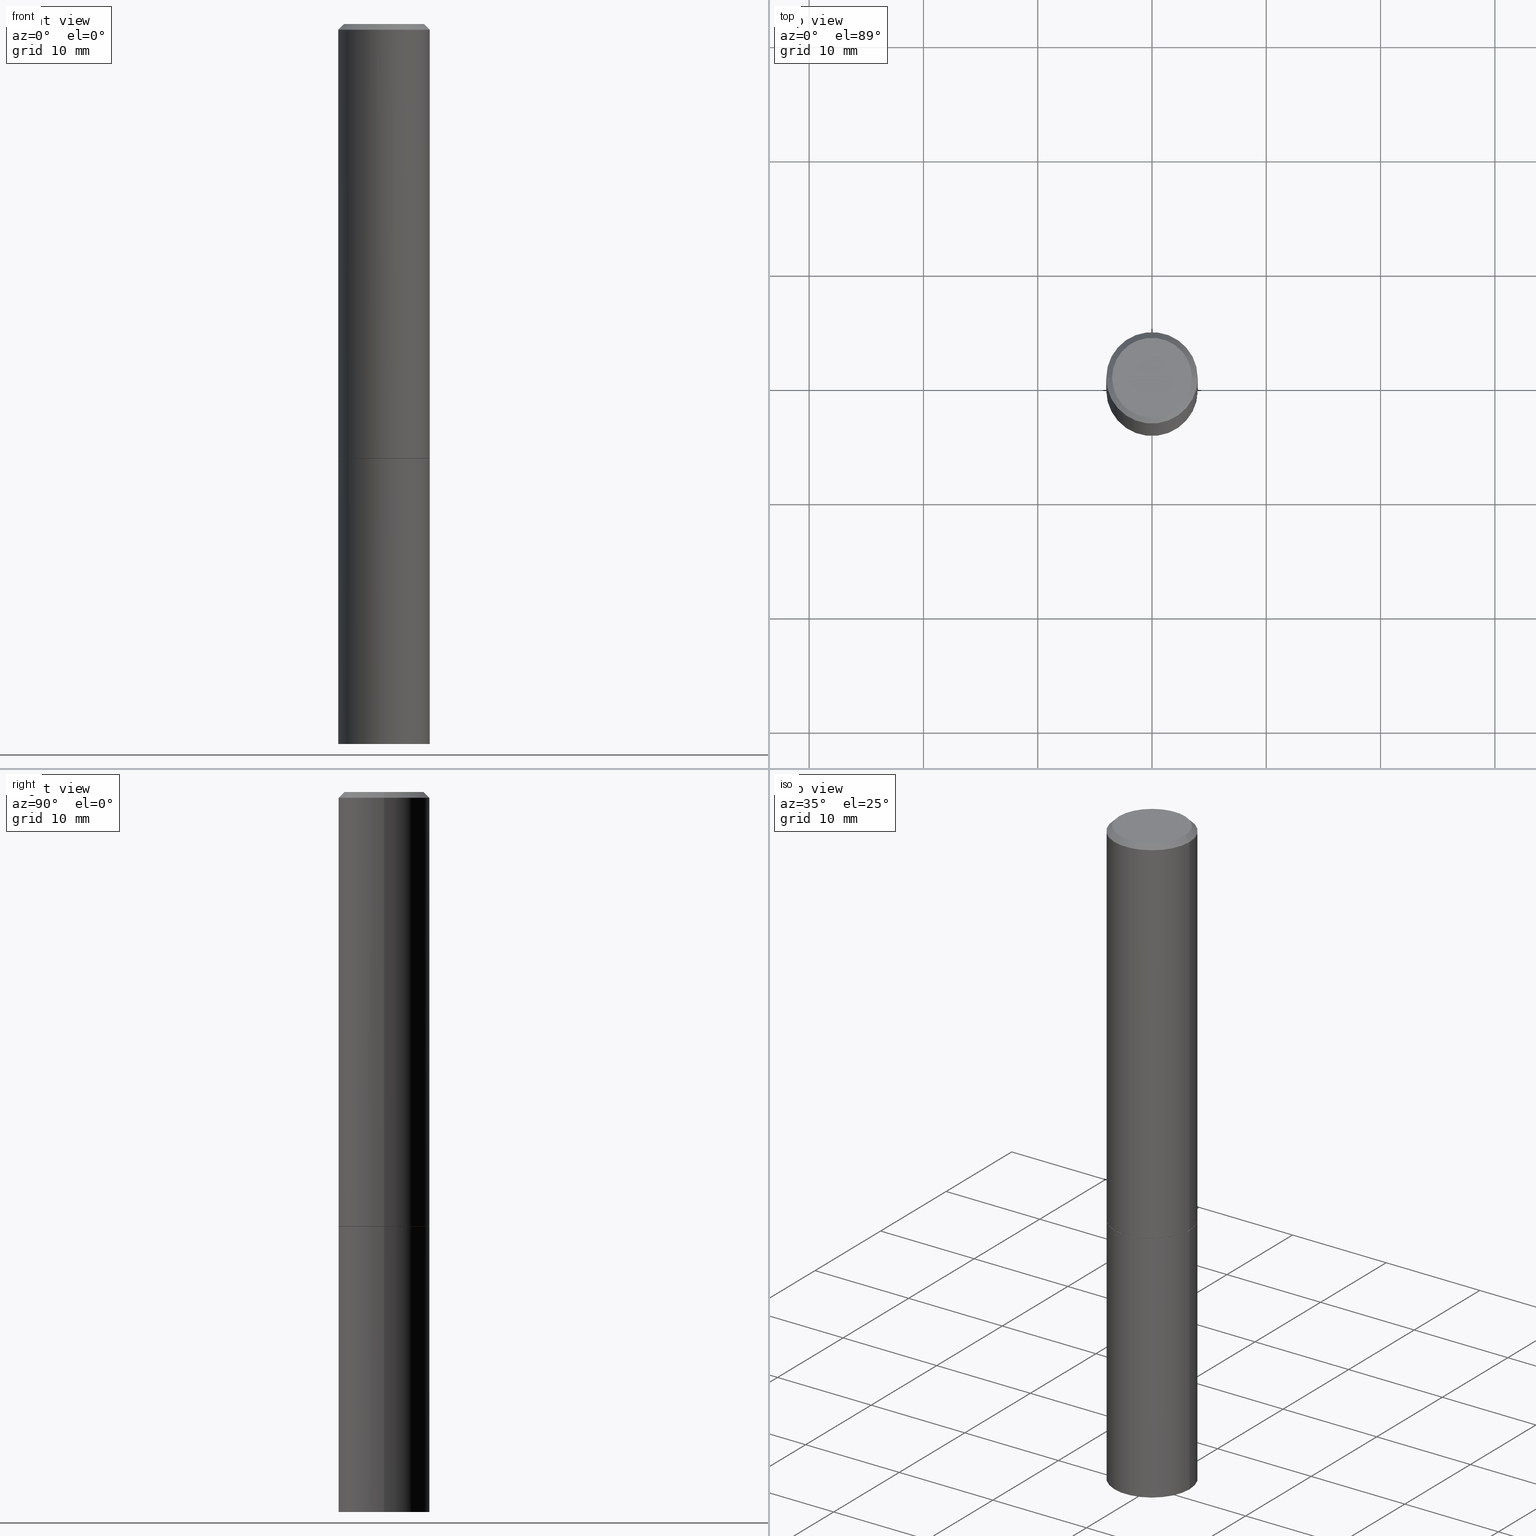
[diagram: canonical four-view strip — front | top / right | iso, engineering-drawing reading convention]
A machine part, canonical four-view strip (front | top / right | iso — engineering-drawing reading convention). The complete STEP part file that produces these views, byte-faithful:
ISO-10303-21;
HEADER;
FILE_DESCRIPTION (( 'STEP AP203' ),
    '1' );
FILE_NAME ('83059.STEP',
    '2024-02-29T22:40:10',
    ( '' ),
    ( '' ),
    'SwSTEP 2.0',
    'SolidWorks 2023',
    '' );
FILE_SCHEMA (( 'CONFIG_CONTROL_DESIGN' ));
ENDSEC;

DATA;
#1 = LOCAL_TIME ( 17, 40, 10.00000000000000000, #98 ) ;
#2 = VERTEX_POINT ( 'NONE', #44 ) ;
#3 = ADVANCED_FACE ( 'NONE', ( #248 ), #118, .F. ) ;
#4 = CARTESIAN_POINT ( 'NONE',  ( -2.087702828670439639E-46, 2.980686340760894400E-32, 8.537024980200822558E-18 ) ) ;
#5 = APPLICATION_CONTEXT ( 'configuration controlled 3d designs of mechanical parts and assemblies' ) ;
#6 = EDGE_LOOP ( 'NONE', ( #272, #156, #28, #188 ) ) ;
#7 = FACE_OUTER_BOUND ( 'NONE', #35, .T. ) ;
#8 = FACE_OUTER_BOUND ( 'NONE', #186, .T. ) ;
#9 = CARTESIAN_POINT ( 'NONE',  ( 3.658421334052965846E-29, -5.223256082909347726E-15, -1.496000000000000663 ) ) ;
#10 = DIRECTION ( 'NONE',  ( -2.445468806185136877E-29, 3.491481338843145188E-15, 1.000000000000000000 ) ) ;
#11 = CARTESIAN_POINT ( 'NONE',  ( 9.601573681818600950E-16, 0.1374999999999997891, -4.758101716008313957E-16 ) ) ;
#12 = CARTESIAN_POINT ( 'NONE',  ( -0.1565000000000000002, -4.111256701444791131E-15, -1.496000000000000663 ) ) ;
#13 = DIRECTION ( 'NONE',  ( 2.445468806185136597E-29, -3.491481338843145583E-15, -1.000000000000000000 ) ) ;
#14 = CALENDAR_DATE ( 2024, 29, 2 ) ;
#15 = CARTESIAN_POINT ( 'NONE',  ( 0.1575000000000000011, -9.759737786468242027E-15, -2.480300000000000171 ) ) ;
#16 = AXIS2_PLACEMENT_3D ( 'NONE', #27, #22, #20 ) ;
#17 = PRODUCT_DEFINITION_FORMATION_WITH_SPECIFIED_SOURCE ( 'ANY', '', #53, .NOT_KNOWN. ) ;
#18 = ADVANCED_FACE ( 'NONE', ( #319 ), #198, .T. ) ;
#19 = APPLICATION_PROTOCOL_DEFINITION ( 'international standard', 'config_control_design', 1994, #5 ) ;
#20 = DIRECTION ( 'NONE',  ( 1.000000000000000000, -6.982962677686261977E-15, 0.000000000000000000 ) ) ;
#21 = COORDINATED_UNIVERSAL_TIME_OFFSET ( 5, 0, .BEHIND. ) ;
#22 = DIRECTION ( 'NONE',  ( -2.445468806185136597E-29, 3.491481338843145583E-15, 1.000000000000000000 ) ) ;
#23 = APPLICATION_PROTOCOL_DEFINITION ( 'international standard', 'config_control_design', 1994, #138 ) ;
#24 = EDGE_LOOP ( 'NONE', ( #244, #180, #136, #220 ) ) ;
#25 = CIRCLE ( 'NONE', #301, 0.1575000000000000011 ) ;
#26 = DATE_AND_TIME ( #268, #229 ) ;
#27 = CARTESIAN_POINT ( 'NONE',  ( 6.065496279980994755E-29, -8.659921164732655335E-15, -2.480300000000000171 ) ) ;
#28 = ORIENTED_EDGE ( 'NONE', *, *, #358, .T. ) ;
#29 = AXIS2_PLACEMENT_3D ( 'NONE', #40, #92, #189 ) ;
#30 = CC_DESIGN_PERSON_AND_ORGANIZATION_ASSIGNMENT ( #208, #124, ( #211 ) ) ;
#31 = CARTESIAN_POINT ( 'NONE',  ( 0.1565000000000000002, -6.316089741967248403E-15, -1.496000000000000663 ) ) ;
#32 = CARTESIAN_POINT ( 'NONE',  ( 0.1575000000000000011, -6.319581223306091410E-15, -1.495000000000000329 ) ) ;
#33 = ADVANCED_FACE ( 'NONE', ( #68 ), #42, .F. ) ;
#34 = CONICAL_SURFACE ( 'NONE', #252, 0.1574999999999997791, 0.7853981633974471688 ) ;
#35 = EDGE_LOOP ( 'NONE', ( #247, #280, #101, #234 ) ) ;
#36 = CYLINDRICAL_SURFACE ( 'NONE', #261, 0.1575000000000000011 ) ;
#37 = LINE ( 'NONE', #285, #161 ) ;
#38 = DIRECTION ( 'NONE',  ( -2.445468806185136877E-29, 3.491481338843145188E-15, 1.000000000000000000 ) ) ;
#39 = EDGE_CURVE ( 'NONE', #2, #314, #37, .T. ) ;
#40 = CARTESIAN_POINT ( 'NONE',  ( 3.658421334052965846E-29, -5.223256082909347726E-15, -1.496000000000000663 ) ) ;
#41 = VECTOR ( 'NONE', #117, 39.37007874015748143 ) ;
#42 = PLANE ( 'NONE',  #329 ) ;
#43 = CARTESIAN_POINT ( 'NONE',  ( 0.000000000000000000, 0.000000000000000000, 0.000000000000000000 ) ) ;
#44 = CARTESIAN_POINT ( 'NONE',  ( -0.1575000000000000011, -1.525692305351524236E-15, -1.495000000000000329 ) ) ;
#45 = DESIGN_CONTEXT ( 'detailed design', #138, 'design' ) ;
#46 = CARTESIAN_POINT ( 'NONE',  ( 4.890937612370281041E-31, -6.982962677686302702E-17, -0.02000000000000003511 ) ) ;
#47 = AXIS2_PLACEMENT_3D ( 'NONE', #145, #311, #119 ) ;
#48 = DATE_AND_TIME ( #179, #302 ) ;
#49 = AXIS2_PLACEMENT_3D ( 'NONE', #4, #271, #80 ) ;
#50 = AXIS2_PLACEMENT_3D ( 'NONE', #240, #365, #108 ) ;
#51 = APPROVAL_DATE_TIME ( #293, #150 ) ;
#52 = DIRECTION ( 'NONE',  ( 1.000000000000000000, -6.982962677686261977E-15, 0.000000000000000000 ) ) ;
#53 = PRODUCT ( '83059', '83059', '', ( #174 ) ) ;
#54 = VERTEX_POINT ( 'NONE', #165 ) ;
#55 = EDGE_LOOP ( 'NONE', ( #306, #86, #238, #276 ) ) ;
#56 = CLOSED_SHELL ( 'NONE', ( #72, #245, #81, #18, #230, #122, #202, #3 ) ) ;
#57 = ORGANIZATION ( 'UNSPECIFIED', 'UNSPECIFIED', '' ) ;
#58 = PLANE ( 'NONE',  #50 ) ;
#59 = ORIENTED_EDGE ( 'NONE', *, *, #134, .F. ) ;
#60 = CARTESIAN_POINT ( 'NONE',  ( 0.000000000000000000, 0.000000000000000000, 0.000000000000000000 ) ) ;
#61 = EDGE_LOOP ( 'NONE', ( #59, #317 ) ) ;
#62 = CONICAL_SURFACE ( 'NONE', #137, 0.1565000000000000002, 0.7853981633972775267 ) ;
#63 = LINE ( 'NONE', #12, #199 ) ;
#64 = CARTESIAN_POINT ( 'NONE',  ( -0.1374999999999997891, 9.950721815702913496E-16, 8.537024980193986277E-18 ) ) ;
#65 = DIRECTION ( 'NONE',  ( 2.445468806185136597E-29, -3.491481338843145583E-15, -1.000000000000000000 ) ) ;
#66 = CC_DESIGN_DATE_AND_TIME_ASSIGNMENT ( #26, #100, ( #210 ) ) ;
#67 = CARTESIAN_POINT ( 'NONE',  ( 0.1574999999999998901, -1.099816621735586297E-15, 7.679978421878593829E-30 ) ) ;
#68 = FACE_OUTER_BOUND ( 'NONE', #190, .T. ) ;
#69 = CYLINDRICAL_SURFACE ( 'NONE', #312, 0.1575000000000000011 ) ;
#70 = FACE_OUTER_BOUND ( 'NONE', #55, .T. ) ;
#71 = CARTESIAN_POINT ( 'NONE',  ( 0.1574999999999997791, -1.150358061425877894E-15, -0.02000000000000003511 ) ) ;
#72 = ADVANCED_FACE ( 'NONE', ( #8 ), #62, .T. ) ;
#73 = CARTESIAN_POINT ( 'NONE',  ( 4.890937612370281041E-31, -6.982962677686302702E-17, -0.02000000000000003511 ) ) ;
#74 = DATE_TIME_ROLE ( 'creation_date' ) ;
#75 = VECTOR ( 'NONE', #10, 39.37007874015748143 ) ;
#76 = EDGE_CURVE ( 'NONE', #197, #364, #233, .T. ) ;
#77 = PERSON_AND_ORGANIZATION_ROLE ( 'design_owner' ) ;
#78 = SECURITY_CLASSIFICATION_LEVEL ( 'unclassified' ) ;
#79 = VECTOR ( 'NONE', #140, 39.37007874015748143 ) ;
#80 = DIRECTION ( 'NONE',  ( 1.000000000000000000, -6.982962677686267499E-15, 4.876173381029107889E-29 ) ) ;
#81 = ADVANCED_FACE ( 'NONE', ( #70 ), #34, .T. ) ;
#82 = EDGE_LOOP ( 'NONE', ( #195, #310, #135, #141 ) ) ;
#83 = CLOSED_SHELL ( 'NONE', ( #249, #90, #33, #354 ) ) ;
#84 = ORIENTED_EDGE ( 'NONE', *, *, #315, .T. ) ;
#85 =( LENGTH_UNIT ( ) NAMED_UNIT ( * ) SI_UNIT ( $, .METRE. ) );
#86 = ORIENTED_EDGE ( 'NONE', *, *, #281, .T. ) ;
#87 = CIRCLE ( 'NONE', #228, 0.1575000000000000011 ) ;
#88 = CARTESIAN_POINT ( 'NONE',  ( -0.1574999999999997791, 1.029986994958722407E-15, -0.02000000000000003511 ) ) ;
#89 = PLANE ( 'NONE',  #260 ) ;
#90 = ADVANCED_FACE ( 'NONE', ( #321 ), #89, .T. ) ;
#91 = ORIENTED_EDGE ( 'NONE', *, *, #169, .T. ) ;
#92 = DIRECTION ( 'NONE',  ( -2.445468806185136597E-29, 3.491481338843145583E-15, 1.000000000000000000 ) ) ;
#93 = DIRECTION ( 'NONE',  ( 1.000000000000000000, -6.982962677686267499E-15, 0.000000000000000000 ) ) ;
#94 = CC_DESIGN_PERSON_AND_ORGANIZATION_ASSIGNMENT ( #297, #263, ( #210 ) ) ;
#95 = DIRECTION ( 'NONE',  ( -2.445468806185136597E-29, 3.491481338843145583E-15, 1.000000000000000000 ) ) ;
#96 =( NAMED_UNIT ( * ) SI_UNIT ( $, .STERADIAN. ) SOLID_ANGLE_UNIT ( ) );
#97 = CIRCLE ( 'NONE', #115, 0.1565000000000000002 ) ;
#98 = COORDINATED_UNIVERSAL_TIME_OFFSET ( 5, 0, .BEHIND. ) ;
#99 = DIRECTION ( 'NONE',  ( -2.445468806185136597E-29, 3.491481338843145583E-15, 1.000000000000000000 ) ) ;
#100 = DATE_TIME_ROLE ( 'classification_date' ) ;
#101 = ORIENTED_EDGE ( 'NONE', *, *, #187, .F. ) ;
#102 = CIRCLE ( 'NONE', #49, 0.1374999999999997891 ) ;
#103 = CC_DESIGN_APPROVAL ( #328, ( #17 ) ) ;
#104 = CARTESIAN_POINT ( 'NONE',  ( -0.1575000000000000011, -5.822483814998842744E-15, -1.496000000000000441 ) ) ;
#105 = EDGE_LOOP ( 'NONE', ( #292, #257 ) ) ;
#106 = DIRECTION ( 'NONE',  ( -2.445468806185136597E-29, 3.491481338843145583E-15, 1.000000000000000000 ) ) ;
#107 = VERTEX_POINT ( 'NONE', #15 ) ;
#108 = DIRECTION ( 'NONE',  ( 1.000000000000000000, -6.982962677686265922E-15, 4.876176775795935793E-29 ) ) ;
#109 = EDGE_CURVE ( 'NONE', #111, #314, #243, .T. ) ;
#110 = CIRCLE ( 'NONE', #215, 0.1575000000000000011 ) ;
#111 = VERTEX_POINT ( 'NONE', #353 ) ;
#112 = EDGE_CURVE ( 'NONE', #153, #2, #307, .T. ) ;
#113 = CARTESIAN_POINT ( 'NONE',  ( 0.000000000000000000, 0.000000000000000000, 0.000000000000000000 ) ) ;
#114 = CARTESIAN_POINT ( 'NONE',  ( 3.658421334052965286E-29, -5.223256082909346937E-15, -1.496000000000000441 ) ) ;
#115 = AXIS2_PLACEMENT_3D ( 'NONE', #9, #320, #347 ) ;
#116 = CC_DESIGN_APPROVAL ( #150, ( #211 ) ) ;
#117 = DIRECTION ( 'NONE',  ( -0.7071067811865466846, 2.468850131082247989E-15, -0.7071067811865483499 ) ) ;
#118 = PLANE ( 'NONE',  #204 ) ;
#119 = DIRECTION ( 'NONE',  ( 1.000000000000000000, -6.982962677686267499E-15, 4.876173381029107889E-29 ) ) ;
#120 = DIRECTION ( 'NONE',  ( -1.000000000000000000, 6.982962677686265922E-15, -4.876176775795935793E-29 ) ) ;
#121 = DIRECTION ( 'NONE',  ( -1.000000000000000000, 6.982962677686265922E-15, -4.876176775795935793E-29 ) ) ;
#122 = ADVANCED_FACE ( 'NONE', ( #326 ), #177, .T. ) ;
#123 = DIRECTION ( 'NONE',  ( 1.000000000000000000, -6.982962677686266711E-15, 0.000000000000000000 ) ) ;
#124 = PERSON_AND_ORGANIZATION_ROLE ( 'creator' ) ;
#125 = EDGE_CURVE ( 'NONE', #132, #107, #110, .T. ) ;
#126 = DIRECTION ( 'NONE',  ( -2.445468806185136597E-29, 3.491481338843145583E-15, 1.000000000000000000 ) ) ;
#127 = DATE_AND_TIME ( #14, #269 ) ;
#128 = PERSON ( 'UNSPECIFIED', 'UNSPECIFIED', 'UNSPECIFIED', ('UNSPECIFIED'), ('UNSPECIFIED'), ('UNSPECIFIED') ) ;
#129 = DIRECTION ( 'NONE',  ( 0.000000000000000000, 0.000000000000000000, 1.000000000000000000 ) ) ;
#130 = MANIFOLD_SOLID_BREP ( 'Body-Move/Copy2[2]', #56 ) ;
#131 = VECTOR ( 'NONE', #193, 39.37007874015748143 ) ;
#132 = VERTEX_POINT ( 'NONE', #149 ) ;
#133 = MANIFOLD_SOLID_BREP ( 'Body-Move/Copy2[1]', #83 ) ;
#134 = EDGE_CURVE ( 'NONE', #107, #132, #359, .T. ) ;
#135 = ORIENTED_EDGE ( 'NONE', *, *, #109, .F. ) ;
#136 = ORIENTED_EDGE ( 'NONE', *, *, #303, .T. ) ;
#137 = AXIS2_PLACEMENT_3D ( 'NONE', #227, #171, #93 ) ;
#138 = APPLICATION_CONTEXT ( 'configuration controlled 3d designs of mechanical parts and assemblies' ) ;
#139 = EDGE_CURVE ( 'NONE', #185, #153, #355, .T. ) ;
#140 = DIRECTION ( 'NONE',  ( 0.7071067811865466846, -7.319954787623252890E-15, -0.7071067811865483499 ) ) ;
#141 = ORIENTED_EDGE ( 'NONE', *, *, #333, .F. ) ;
#142 = DIRECTION ( 'NONE',  ( -2.445468806185136597E-29, 3.491481338843145583E-15, 1.000000000000000000 ) ) ;
#143 = AXIS2_PLACEMENT_3D ( 'NONE', #323, #162, #318 ) ;
#144 =( GEOMETRIC_REPRESENTATION_CONTEXT ( 3 ) GLOBAL_UNCERTAINTY_ASSIGNED_CONTEXT ( ( #191 ) ) GLOBAL_UNIT_ASSIGNED_CONTEXT ( ( #284, #258, #96 ) ) REPRESENTATION_CONTEXT ( 'NONE', 'WORKASPACE' ) );
#145 = CARTESIAN_POINT ( 'NONE',  ( -2.087702828670439639E-46, 2.980686340760894400E-32, 8.537024980200822558E-18 ) ) ;
#146 = DIRECTION ( 'NONE',  ( 1.000000000000000000, -6.982962677686266711E-15, 4.876176775795935793E-29 ) ) ;
#147 = DIRECTION ( 'NONE',  ( -2.445468806185136597E-29, 3.491481338843145583E-15, 1.000000000000000000 ) ) ;
#148 = COORDINATED_UNIVERSAL_TIME_OFFSET ( 5, 0, .BEHIND. ) ;
#149 = CARTESIAN_POINT ( 'NONE',  ( -0.1575000000000000011, -5.822483814998842744E-15, -2.480300000000000171 ) ) ;
#150 = APPROVAL ( #327, 'UNSPECIFIED' ) ;
#151 = CARTESIAN_POINT ( 'NONE',  ( 6.065496279980994755E-29, -8.659921164732655335E-15, -2.480300000000000171 ) ) ;
#152 = CARTESIAN_POINT ( 'NONE',  ( 0.000000000000000000, 0.000000000000000000, 0.000000000000000000 ) ) ;
#153 = VERTEX_POINT ( 'NONE', #32 ) ;
#154 = PERSON_AND_ORGANIZATION ( #128, #57 ) ;
#155 = CARTESIAN_POINT ( 'NONE',  ( 3.658421334052965846E-29, -5.223256082909347726E-15, -1.496000000000000663 ) ) ;
#156 = ORIENTED_EDGE ( 'NONE', *, *, #315, .F. ) ;
#157 = ORIENTED_EDGE ( 'NONE', *, *, #139, .F. ) ;
#158 = EDGE_LOOP ( 'NONE', ( #84, #91 ) ) ;
#159 = ORIENTED_EDGE ( 'NONE', *, *, #76, .T. ) ;
#160 = EDGE_CURVE ( 'NONE', #2, #153, #25, .T. ) ;
#161 = VECTOR ( 'NONE', #255, 39.37007874015748143 ) ;
#162 = DIRECTION ( 'NONE',  ( -2.445468806185136597E-29, 3.491481338843145583E-15, 1.000000000000000000 ) ) ;
#163 = CARTESIAN_POINT ( 'NONE',  ( 4.890937612370281041E-31, -6.982962677686302702E-17, -0.02000000000000003511 ) ) ;
#164 = CARTESIAN_POINT ( 'NONE',  ( -0.1575000000000000011, 1.119104808822157801E-15, -7.747322767151475583E-30 ) ) ;
#165 = CARTESIAN_POINT ( 'NONE',  ( 0.1374999999999997891, -1.046838268059730914E-15, 8.537024980207840646E-18 ) ) ;
#166 = LENGTH_MEASURE_WITH_UNIT ( LENGTH_MEASURE( 0.02539999999999999897 ), #85 );
#167 = DIRECTION ( 'NONE',  ( 2.438088387897960049E-29, -3.491481338843145188E-15, -1.000000000000000000 ) ) ;
#168 = VECTOR ( 'NONE', #182, 39.37007874015748143 ) ;
#169 = EDGE_CURVE ( 'NONE', #54, #324, #102, .T. ) ;
#170 = LINE ( 'NONE', #164, #356 ) ;
#171 = DIRECTION ( 'NONE',  ( -2.445468806185136597E-29, 3.491481338843145583E-15, 1.000000000000000000 ) ) ;
#172 = LINE ( 'NONE', #71, #79 ) ;
#173 = DIRECTION ( 'NONE',  ( -1.000000000000000000, 6.982962677686265922E-15, -4.876176775795935793E-29 ) ) ;
#174 = MECHANICAL_CONTEXT ( 'NONE', #5, 'mechanical' ) ;
#175 = PRODUCT_DEFINITION_SHAPE ( 'NONE', 'NONE',  #211 ) ;
#176 = CC_DESIGN_PERSON_AND_ORGANIZATION_ASSIGNMENT ( #201, #77, ( #53 ) ) ;
#177 = CONICAL_SURFACE ( 'NONE', #221, 0.1565000000000000002, 0.7853981633972775267 ) ;
#178 = PERSON_AND_ORGANIZATION ( #128, #57 ) ;
#179 = CALENDAR_DATE ( 2024, 29, 2 ) ;
#180 = ORIENTED_EDGE ( 'NONE', *, *, #125, .T. ) ;
#181 = PERSON_AND_ORGANIZATION ( #128, #57 ) ;
#182 = DIRECTION ( 'NONE',  ( 0.7071067811864267805, -2.468850131080992517E-15, 0.7071067811866682540 ) ) ;
#183 = CC_DESIGN_PERSON_AND_ORGANIZATION_ASSIGNMENT ( #332, #352, ( #17 ) ) ;
#184 = AXIS2_PLACEMENT_3D ( 'NONE', #163, #65, #225 ) ;
#185 = VERTEX_POINT ( 'NONE', #31 ) ;
#186 = EDGE_LOOP ( 'NONE', ( #351, #251, #241, #157 ) ) ;
#187 = EDGE_CURVE ( 'NONE', #364, #197, #87, .T. ) ;
#188 = ORIENTED_EDGE ( 'NONE', *, *, #270, .T. ) ;
#189 = DIRECTION ( 'NONE',  ( 1.000000000000000000, -6.982962677686267499E-15, 0.000000000000000000 ) ) ;
#190 = EDGE_LOOP ( 'NONE', ( #213, #159 ) ) ;
#191 = UNCERTAINTY_MEASURE_WITH_UNIT (LENGTH_MEASURE( 1.000000000000000082E-05 ), #284, 'distance_accuracy_value', 'NONE');
#192 = CIRCLE ( 'NONE', #47, 0.1374999999999997891 ) ;
#193 = DIRECTION ( 'NONE',  ( -2.445468806185136877E-29, 3.491481338843145188E-15, 1.000000000000000000 ) ) ;
#194 = ORIENTED_EDGE ( 'NONE', *, *, #160, .F. ) ;
#195 = ORIENTED_EDGE ( 'NONE', *, *, #112, .T. ) ;
#196 = FACE_OUTER_BOUND ( 'NONE', #82, .T. ) ;
#197 = VERTEX_POINT ( 'NONE', #104 ) ;
#198 = CONICAL_SURFACE ( 'NONE', #184, 0.1574999999999997791, 0.7853981633974471688 ) ;
#199 = VECTOR ( 'NONE', #350, 39.37007874015748143 ) ;
#200 = ADVANCED_BREP_SHAPE_REPRESENTATION ( '83059', ( #133, #130, #296 ), #144 ) ;
#201 = PERSON_AND_ORGANIZATION ( #128, #57 ) ;
#202 = ADVANCED_FACE ( 'NONE', ( #336 ), #58, .F. ) ;
#203 = DIRECTION ( 'NONE',  ( 2.438088387897960049E-29, -3.491481338843145188E-15, -1.000000000000000000 ) ) ;
#204 = AXIS2_PLACEMENT_3D ( 'NONE', #11, #203, #120 ) ;
#205 = CALENDAR_DATE ( 2024, 29, 2 ) ;
#206 = APPROVAL_STATUS ( 'not_yet_approved' ) ;
#207 = CARTESIAN_POINT ( 'NONE',  ( 3.655975865246779683E-29, -5.219764601570503930E-15, -1.495000000000000329 ) ) ;
#208 = PERSON_AND_ORGANIZATION ( #128, #57 ) ;
#209 = DIRECTION ( 'NONE',  ( -2.445468806185136597E-29, 3.491481338843145583E-15, 1.000000000000000000 ) ) ;
#210 = SECURITY_CLASSIFICATION ( '', '', #78 ) ;
#211 = PRODUCT_DEFINITION ( 'UNKNOWN', '', #17, #45 ) ;
#212 = DIRECTION ( 'NONE',  ( 1.000000000000000000, -6.982962677686268288E-15, 0.000000000000000000 ) ) ;
#213 = ORIENTED_EDGE ( 'NONE', *, *, #187, .T. ) ;
#214 = FACE_OUTER_BOUND ( 'NONE', #239, .T. ) ;
#215 = AXIS2_PLACEMENT_3D ( 'NONE', #151, #126, #52 ) ;
#216 = APPROVAL_PERSON_ORGANIZATION ( #181, #265, #290 ) ;
#217 = CALENDAR_DATE ( 2024, 29, 2 ) ;
#218 = LINE ( 'NONE', #67, #75 ) ;
#219 = LINE ( 'NONE', #224, #131 ) ;
#220 = ORIENTED_EDGE ( 'NONE', *, *, #76, .F. ) ;
#221 = AXIS2_PLACEMENT_3D ( 'NONE', #155, #209, #294 ) ;
#222 = CARTESIAN_POINT ( 'NONE',  ( -0.1565000000000000002, -4.105958247096567940E-15, -1.496000000000000663 ) ) ;
#223 = PRODUCT_RELATED_PRODUCT_CATEGORY ( 'detail', '', ( #53 ) ) ;
#224 = CARTESIAN_POINT ( 'NONE',  ( 0.1575000000000000011, -1.099816621735586889E-15, 7.679978421878598033E-30 ) ) ;
#225 = DIRECTION ( 'NONE',  ( -1.000000000000000000, 6.982962677686266711E-15, 0.000000000000000000 ) ) ;
#226 = DIRECTION ( 'NONE',  ( 1.000000000000000000, -6.982962677686266711E-15, 4.876176775795935793E-29 ) ) ;
#227 = CARTESIAN_POINT ( 'NONE',  ( 3.658421334052965846E-29, -5.223256082909347726E-15, -1.496000000000000663 ) ) ;
#228 = AXIS2_PLACEMENT_3D ( 'NONE', #362, #106, #212 ) ;
#229 = LOCAL_TIME ( 17, 40, 10.00000000000000000, #21 ) ;
#230 = ADVANCED_FACE ( 'NONE', ( #214 ), #308, .T. ) ;
#231 = DIRECTION ( 'NONE',  ( -1.000000000000000000, 6.982962677686266711E-15, 0.000000000000000000 ) ) ;
#232 = COORDINATED_UNIVERSAL_TIME_OFFSET ( 5, 0, .BEHIND. ) ;
#233 = CIRCLE ( 'NONE', #273, 0.1575000000000000011 ) ;
#234 = ORIENTED_EDGE ( 'NONE', *, *, #303, .F. ) ;
#235 = APPROVAL_ROLE ( '' ) ;
#236 = CIRCLE ( 'NONE', #29, 0.1565000000000000002 ) ;
#237 = CC_DESIGN_APPROVAL ( #265, ( #210 ) ) ;
#238 = ORIENTED_EDGE ( 'NONE', *, *, #109, .T. ) ;
#239 = EDGE_LOOP ( 'NONE', ( #266, #300, #309, #339 ) ) ;
#240 = CARTESIAN_POINT ( 'NONE',  ( 3.658421334052965846E-29, -5.223256082909347726E-15, -1.496000000000000663 ) ) ;
#241 = ORIENTED_EDGE ( 'NONE', *, *, #112, .F. ) ;
#242 = CIRCLE ( 'NONE', #143, 0.1574999999999997791 ) ;
#243 = CIRCLE ( 'NONE', #286, 0.1574999999999997791 ) ;
#244 = ORIENTED_EDGE ( 'NONE', *, *, #341, .F. ) ;
#245 = ADVANCED_FACE ( 'NONE', ( #196 ), #346, .T. ) ;
#246 = DATE_AND_TIME ( #217, #277 ) ;
#247 = ORIENTED_EDGE ( 'NONE', *, *, #134, .T. ) ;
#248 = FACE_OUTER_BOUND ( 'NONE', #158, .T. ) ;
#249 = ADVANCED_FACE ( 'NONE', ( #7 ), #69, .T. ) ;
#250 = LINE ( 'NONE', #256, #41 ) ;
#251 = ORIENTED_EDGE ( 'NONE', *, *, #363, .T. ) ;
#252 = AXIS2_PLACEMENT_3D ( 'NONE', #73, #13, #231 ) ;
#253 = APPROVAL_DATE_TIME ( #246, #265 ) ;
#254 = DIRECTION ( 'NONE',  ( 1.000000000000000000, -6.982962677686265922E-15, 4.876176775795935232E-29 ) ) ;
#255 = DIRECTION ( 'NONE',  ( -2.445468806185136877E-29, 3.491481338843145188E-15, 1.000000000000000000 ) ) ;
#256 = CARTESIAN_POINT ( 'NONE',  ( -0.1574999999999997791, 1.029986994958722407E-15, -0.02000000000000003511 ) ) ;
#257 = ORIENTED_EDGE ( 'NONE', *, *, #322, .F. ) ;
#258 =( NAMED_UNIT ( * ) PLANE_ANGLE_UNIT ( ) SI_UNIT ( $, .RADIAN. ) );
#259 = CARTESIAN_POINT ( 'NONE',  ( 1.099816621735647434E-15, 0.1574999999999913136, -2.480300000000001059 ) ) ;
#260 = AXIS2_PLACEMENT_3D ( 'NONE', #259, #289, #173 ) ;
#261 = AXIS2_PLACEMENT_3D ( 'NONE', #43, #142, #342 ) ;
#262 = APPROVAL_DATE_TIME ( #48, #328 ) ;
#263 = PERSON_AND_ORGANIZATION_ROLE ( 'classification_officer' ) ;
#264 = PERSON_AND_ORGANIZATION ( #128, #57 ) ;
#265 = APPROVAL ( #278, 'UNSPECIFIED' ) ;
#266 = ORIENTED_EDGE ( 'NONE', *, *, #39, .F. ) ;
#267 = AXIS2_PLACEMENT_3D ( 'NONE', #60, #279, #226 ) ;
#268 = CALENDAR_DATE ( 2024, 29, 2 ) ;
#269 = LOCAL_TIME ( 17, 40, 10.00000000000000000, #148 ) ;
#270 = EDGE_CURVE ( 'NONE', #314, #111, #242, .T. ) ;
#271 = DIRECTION ( 'NONE',  ( -2.445468806185136597E-29, 3.491481338843145583E-15, 1.000000000000000000 ) ) ;
#272 = ORIENTED_EDGE ( 'NONE', *, *, #281, .F. ) ;
#273 = AXIS2_PLACEMENT_3D ( 'NONE', #114, #95, #283 ) ;
#274 = DIRECTION ( 'NONE',  ( 1.000000000000000000, -6.982962677686268288E-15, 0.000000000000000000 ) ) ;
#275 = ORIENTED_EDGE ( 'NONE', *, *, #322, .T. ) ;
#276 = ORIENTED_EDGE ( 'NONE', *, *, #358, .F. ) ;
#277 = LOCAL_TIME ( 17, 40, 10.00000000000000000, #304 ) ;
#278 = APPROVAL_STATUS ( 'not_yet_approved' ) ;
#279 = DIRECTION ( 'NONE',  ( -2.445468806185136597E-29, 3.491481338843145583E-15, 1.000000000000000000 ) ) ;
#280 = ORIENTED_EDGE ( 'NONE', *, *, #341, .T. ) ;
#281 = EDGE_CURVE ( 'NONE', #54, #111, #172, .T. ) ;
#282 = DIRECTION ( 'NONE',  ( -2.445468806185136597E-29, 3.491481338843145583E-15, 1.000000000000000000 ) ) ;
#283 = DIRECTION ( 'NONE',  ( 1.000000000000000000, -6.982962677686268288E-15, 0.000000000000000000 ) ) ;
#284 =( CONVERSION_BASED_UNIT ( 'INCH', #166 ) LENGTH_UNIT ( ) NAMED_UNIT ( #334 ) );
#285 = CARTESIAN_POINT ( 'NONE',  ( -0.1574999999999998901, 1.119104808822157012E-15, -7.747322767151471379E-30 ) ) ;
#286 = AXIS2_PLACEMENT_3D ( 'NONE', #46, #147, #123 ) ;
#287 = APPROVAL_PERSON_ORGANIZATION ( #264, #150, #235 ) ;
#288 = FACE_OUTER_BOUND ( 'NONE', #24, .T. ) ;
#289 = DIRECTION ( 'NONE',  ( 2.438088387897960049E-29, -3.491481338843145188E-15, -1.000000000000000000 ) ) ;
#290 = APPROVAL_ROLE ( '' ) ;
#291 = CARTESIAN_POINT ( 'NONE',  ( 0.1575000000000000011, -6.323072704644934417E-15, -1.496000000000000441 ) ) ;
#292 = ORIENTED_EDGE ( 'NONE', *, *, #337, .F. ) ;
#293 = DATE_AND_TIME ( #205, #1 ) ;
#294 = DIRECTION ( 'NONE',  ( 1.000000000000000000, -6.982962677686267499E-15, 0.000000000000000000 ) ) ;
#295 = AXIS2_PLACEMENT_3D ( 'NONE', #113, #282, #146 ) ;
#296 = AXIS2_PLACEMENT_3D ( 'NONE', #152, #129, #325 ) ;
#297 = PERSON_AND_ORGANIZATION ( #128, #57 ) ;
#298 = CC_DESIGN_DATE_AND_TIME_ASSIGNMENT ( #127, #74, ( #211 ) ) ;
#299 = DIRECTION ( 'NONE',  ( 1.000000000000000000, -6.982962677686268288E-15, 0.000000000000000000 ) ) ;
#300 = ORIENTED_EDGE ( 'NONE', *, *, #160, .T. ) ;
#301 = AXIS2_PLACEMENT_3D ( 'NONE', #360, #338, #274 ) ;
#302 = LOCAL_TIME ( 17, 40, 10.00000000000000000, #232 ) ;
#303 = EDGE_CURVE ( 'NONE', #107, #364, #219, .T. ) ;
#304 = COORDINATED_UNIVERSAL_TIME_OFFSET ( 5, 0, .BEHIND. ) ;
#305 = CARTESIAN_POINT ( 'NONE',  ( 0.1565000000000000002, -6.316089741967248403E-15, -1.496000000000000663 ) ) ;
#306 = ORIENTED_EDGE ( 'NONE', *, *, #169, .F. ) ;
#307 = CIRCLE ( 'NONE', #345, 0.1575000000000000011 ) ;
#308 = CYLINDRICAL_SURFACE ( 'NONE', #267, 0.1574999999999998901 ) ;
#309 = ORIENTED_EDGE ( 'NONE', *, *, #333, .T. ) ;
#310 = ORIENTED_EDGE ( 'NONE', *, *, #39, .T. ) ;
#311 = DIRECTION ( 'NONE',  ( -2.445468806185136597E-29, 3.491481338843145583E-15, 1.000000000000000000 ) ) ;
#312 = AXIS2_PLACEMENT_3D ( 'NONE', #344, #316, #254 ) ;
#313 = CC_DESIGN_SECURITY_CLASSIFICATION ( #210, ( #17 ) ) ;
#314 = VERTEX_POINT ( 'NONE', #88 ) ;
#315 = EDGE_CURVE ( 'NONE', #324, #54, #192, .T. ) ;
#316 = DIRECTION ( 'NONE',  ( -2.445468806185136597E-29, 3.491481338843145583E-15, 1.000000000000000000 ) ) ;
#317 = ORIENTED_EDGE ( 'NONE', *, *, #125, .F. ) ;
#318 = DIRECTION ( 'NONE',  ( 1.000000000000000000, -6.982962677686266711E-15, 0.000000000000000000 ) ) ;
#319 = FACE_OUTER_BOUND ( 'NONE', #6, .T. ) ;
#320 = DIRECTION ( 'NONE',  ( -2.445468806185136597E-29, 3.491481338843145583E-15, 1.000000000000000000 ) ) ;
#321 = FACE_OUTER_BOUND ( 'NONE', #61, .T. ) ;
#322 = EDGE_CURVE ( 'NONE', #366, #185, #236, .T. ) ;
#323 = CARTESIAN_POINT ( 'NONE',  ( 4.890937612370281041E-31, -6.982962677686302702E-17, -0.02000000000000003511 ) ) ;
#324 = VERTEX_POINT ( 'NONE', #64 ) ;
#325 = DIRECTION ( 'NONE',  ( 1.000000000000000000, 0.000000000000000000, 0.000000000000000000 ) ) ;
#326 = FACE_OUTER_BOUND ( 'NONE', #361, .T. ) ;
#327 = APPROVAL_STATUS ( 'not_yet_approved' ) ;
#328 = APPROVAL ( #206, 'UNSPECIFIED' ) ;
#329 = AXIS2_PLACEMENT_3D ( 'NONE', #348, #167, #121 ) ;
#330 = APPROVAL_PERSON_ORGANIZATION ( #178, #328, #331 ) ;
#331 = APPROVAL_ROLE ( '' ) ;
#332 = PERSON_AND_ORGANIZATION ( #128, #57 ) ;
#333 = EDGE_CURVE ( 'NONE', #153, #111, #218, .T. ) ;
#334 = DIMENSIONAL_EXPONENTS ( 1.000000000000000000, 0.000000000000000000, 0.000000000000000000, 0.000000000000000000, 0.000000000000000000, 0.000000000000000000, 0.000000000000000000 ) ;
#335 = ORIENTED_EDGE ( 'NONE', *, *, #139, .T. ) ;
#336 = FACE_OUTER_BOUND ( 'NONE', #105, .T. ) ;
#337 = EDGE_CURVE ( 'NONE', #185, #366, #97, .T. ) ;
#338 = DIRECTION ( 'NONE',  ( -2.445468806185136597E-29, 3.491481338843145583E-15, 1.000000000000000000 ) ) ;
#339 = ORIENTED_EDGE ( 'NONE', *, *, #270, .F. ) ;
#340 = SHAPE_DEFINITION_REPRESENTATION ( #175, #200 ) ;
#341 = EDGE_CURVE ( 'NONE', #132, #197, #170, .T. ) ;
#342 = DIRECTION ( 'NONE',  ( 1.000000000000000000, -6.982962677686265922E-15, 4.876176775795935232E-29 ) ) ;
#343 = ORIENTED_EDGE ( 'NONE', *, *, #363, .F. ) ;
#344 = CARTESIAN_POINT ( 'NONE',  ( 0.000000000000000000, 0.000000000000000000, 0.000000000000000000 ) ) ;
#345 = AXIS2_PLACEMENT_3D ( 'NONE', #207, #99, #299 ) ;
#346 = CYLINDRICAL_SURFACE ( 'NONE', #295, 0.1574999999999998901 ) ;
#347 = DIRECTION ( 'NONE',  ( 1.000000000000000000, -6.982962677686267499E-15, 0.000000000000000000 ) ) ;
#348 = CARTESIAN_POINT ( 'NONE',  ( 1.099816621735623373E-15, 0.1574999999999947553, -1.496000000000000885 ) ) ;
#349 = CC_DESIGN_PERSON_AND_ORGANIZATION_ASSIGNMENT ( #154, #357, ( #17 ) ) ;
#350 = DIRECTION ( 'NONE',  ( -0.7071067811864267805, 7.493145998869918709E-15, 0.7071067811866682540 ) ) ;
#351 = ORIENTED_EDGE ( 'NONE', *, *, #337, .T. ) ;
#352 = PERSON_AND_ORGANIZATION_ROLE ( 'creator' ) ;
#353 = CARTESIAN_POINT ( 'NONE',  ( 0.1574999999999997791, -1.150358061425877894E-15, -0.02000000000000003511 ) ) ;
#354 = ADVANCED_FACE ( 'NONE', ( #288 ), #36, .T. ) ;
#355 = LINE ( 'NONE', #305, #168 ) ;
#356 = VECTOR ( 'NONE', #38, 39.37007874015748143 ) ;
#357 = PERSON_AND_ORGANIZATION_ROLE ( 'design_supplier' ) ;
#358 = EDGE_CURVE ( 'NONE', #324, #314, #250, .T. ) ;
#359 = CIRCLE ( 'NONE', #16, 0.1575000000000000011 ) ;
#360 = CARTESIAN_POINT ( 'NONE',  ( 3.655975865246779683E-29, -5.219764601570503930E-15, -1.495000000000000329 ) ) ;
#361 = EDGE_LOOP ( 'NONE', ( #343, #275, #335, #194 ) ) ;
#362 = CARTESIAN_POINT ( 'NONE',  ( 3.658421334052965286E-29, -5.223256082909346937E-15, -1.496000000000000441 ) ) ;
#363 = EDGE_CURVE ( 'NONE', #366, #2, #63, .T. ) ;
#364 = VERTEX_POINT ( 'NONE', #291 ) ;
#365 = DIRECTION ( 'NONE',  ( -2.438088387897960049E-29, 3.491481338843145188E-15, 1.000000000000000000 ) ) ;
#366 = VERTEX_POINT ( 'NONE', #222 ) ;
ENDSEC;
END-ISO-10303-21;
